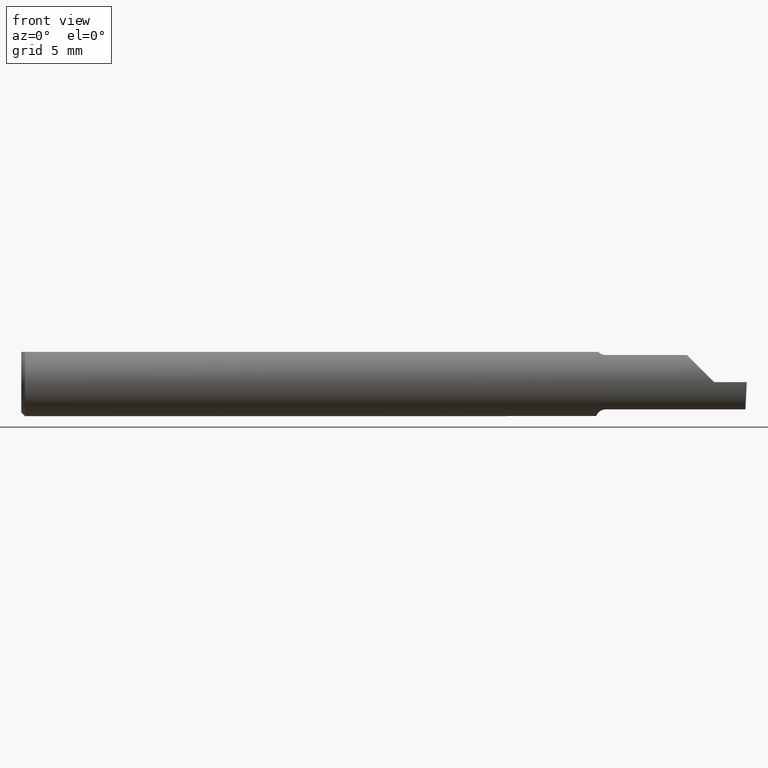
[diagram: clean part render]
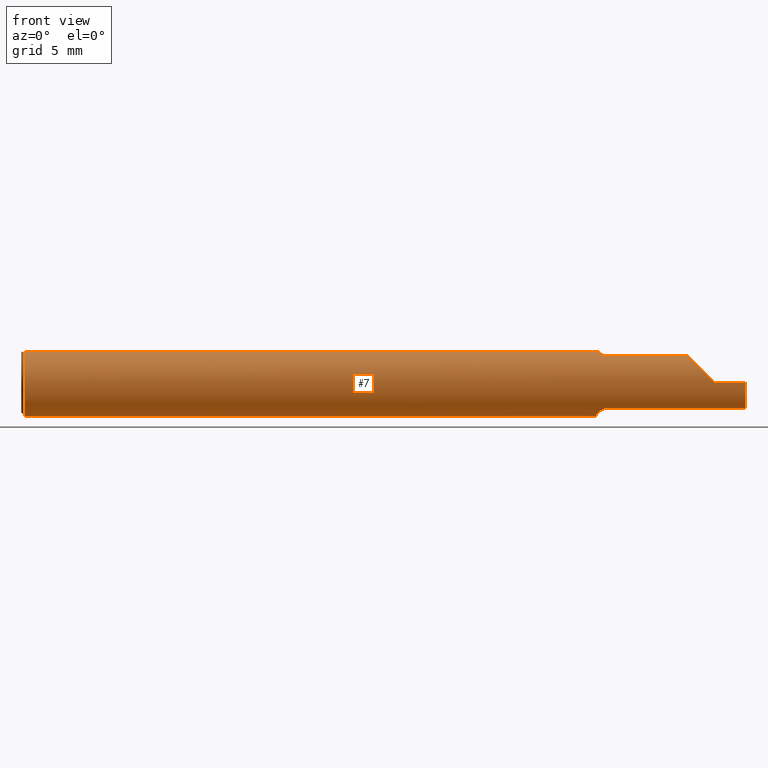
[diagram: same view with one face highlighted and labeled with its STEP entity id]
A machine part, front view. The second image highlights one B-rep face of the part: STEP entity #7.
In plain terms, the highlighted cylindrical surface (edge-blend (fillet) strip) has radius 2.3774 mm, axis along (-1, -0, -0).
Its self-contained STEP definition (entity closure, byte-faithful):
#6 = DIRECTION ( 'NONE',  ( -1.000000000000000000, -0.000000000000000000, -0.000000000000000000 ) ) ;
#7 = ADVANCED_FACE ( 'NONE', ( #692 ), #497, .T. ) ;
#15 = EDGE_CURVE ( 'NONE', #108, #443, #516, .T. ) ;
#19 = ORIENTED_EDGE ( 'NONE', *, *, #743, .F. ) ;
#22 = EDGE_CURVE ( 'NONE', #443, #633, #177, .T. ) ;
#27 = CARTESIAN_POINT ( 'NONE',  ( 1.591204482410374377, -0.04226411763296350488, 0.08351490979309540708 ) ) ;
#32 = CARTESIAN_POINT ( 'NONE',  ( 1.854690286057536941, -0.08092595952420821026, 0.05530971394246249340 ) ) ;
#45 = VERTEX_POINT ( 'NONE', #190 ) ;
#49 = LINE ( 'NONE', #183, #557 ) ;
#58 = CARTESIAN_POINT ( 'NONE',  ( 1.584999999999999964, -0.01308640439514272696, -0.09289765197734378699 ) ) ;
#62 = ORIENTED_EDGE ( 'NONE', *, *, #15, .T. ) ;
#63 = AXIS2_PLACEMENT_3D ( 'NONE', #696, #779, #150 ) ;
#66 = LINE ( 'NONE', #372, #771 ) ;
#80 = CARTESIAN_POINT ( 'NONE',  ( 1.593098441794898346, -0.04641417426599075274, 0.08139430652501543351 ) ) ;
#88 = EDGE_CURVE ( 'NONE', #756, #45, #494, .T. ) ;
#100 = VERTEX_POINT ( 'NONE', #252 ) ;
#108 = VERTEX_POINT ( 'NONE', #263 ) ;
#113 = EDGE_CURVE ( 'NONE', #399, #756, #452, .T. ) ;
#115 = CARTESIAN_POINT ( 'NONE',  ( 1.995069675717878299, -0.05810704225352107677, -0.07337936794867833123 ) ) ;
#119 = DIRECTION ( 'NONE',  ( 1.000000000000000000, 0.000000000000000000, 0.000000000000000000 ) ) ;
#128 = CARTESIAN_POINT ( 'NONE',  ( 1.585436655799339345, -0.01945041057485642419, -0.09177104786119409663 ) ) ;
#130 = DIRECTION ( 'NONE',  ( -1.000000000000000000, -0.000000000000000000, -0.000000000000000000 ) ) ;
#132 = CARTESIAN_POINT ( 'NONE',  ( 0.01000000000000016674, 0.000000000000000000, 0.000000000000000000 ) ) ;
#135 = CARTESIAN_POINT ( 'NONE',  ( 0.000000000000000000, 0.000000000000000000, 0.000000000000000000 ) ) ;
#136 = CARTESIAN_POINT ( 'NONE',  ( 0.01000000000000016674, 0.000000000000000000, -0.09360000000000001652 ) ) ;
#140 = CARTESIAN_POINT ( 'NONE',  ( 1.605389214148234434, -0.05750155061631018888, 0.07386444488392715502 ) ) ;
#142 = DIRECTION ( 'NONE',  ( 1.000000000000000000, 0.000000000000000000, 0.000000000000000000 ) ) ;
#150 = DIRECTION ( 'NONE',  ( 0.000000000000000000, 0.000000000000000000, -1.000000000000000000 ) ) ;
#153 = CARTESIAN_POINT ( 'NONE',  ( 1.591129652885479473, -0.04209513035970116612, 0.08359999999999991049 ) ) ;
#168 = CARTESIAN_POINT ( 'NONE',  ( 1.880893035518782730, -0.09359999999999997489, 0.02910696448121682239 ) ) ;
#172 = CARTESIAN_POINT ( 'NONE',  ( 1.601446782524424073, -0.05558685324519220539, -0.07531605361338929161 ) ) ;
#177 = CIRCLE ( 'NONE', #801, 0.09360000000000001652 ) ;
#178 = CARTESIAN_POINT ( 'NONE',  ( 0.000000000000000000, 0.04209513035969864037, 0.08359999999999988274 ) ) ;
#183 = CARTESIAN_POINT ( 'NONE',  ( 2.999519565323742037E-32, -0.09359999999999998876, 2.449293598294716768E-16 ) ) ;
#184 = VERTEX_POINT ( 'NONE', #638 ) ;
#190 = CARTESIAN_POINT ( 'NONE',  ( 1.836620632051321200, -0.05810704225352102820, 0.07337936794867834511 ) ) ;
#197 = CARTESIAN_POINT ( 'NONE',  ( 1.997012998164632958, -0.09360000000000001652, 0.000000000000000000 ) ) ;
#198 = B_SPLINE_CURVE_WITH_KNOTS ( 'NONE', 3,
 ( #476, #673, #610, #128, #58, #234 ),
 .UNSPECIFIED., .F., .F.,
 ( 4, 2, 4 ),
 ( 0.0007041963409106256075, 0.001193146413573847875, 0.001682096486237070251 ),
 .UNSPECIFIED. ) ;
#200 = CARTESIAN_POINT ( 'NONE',  ( 1.995996405735428469, -0.09359999999999997489, -0.02910696448121681199 ) ) ;
#206 = CARTESIAN_POINT ( 'NONE',  ( 1.609999999999999654, -0.05810704225352104207, 0.07337936794867834511 ) ) ;
#234 = CARTESIAN_POINT ( 'NONE',  ( 1.584999999999999964, -0.006757276995305234492, -0.09335576686851605743 ) ) ;
#238 = EDGE_CURVE ( 'NONE', #184, #293, #755, .T. ) ;
#241 = EDGE_LOOP ( 'NONE', ( #532, #356, #405, #777, #780, #564, #297, #19, #62, #350, #326, #300, #262, #467 ) ) ;
#248 = DIRECTION ( 'NONE',  ( 0.000000000000000000, 0.000000000000000000, -1.000000000000000000 ) ) ;
#252 = CARTESIAN_POINT ( 'NONE',  ( 1.591356684838558744, -0.04260000000000006143, -0.08334386600104411180 ) ) ;
#255 = CARTESIAN_POINT ( 'NONE',  ( 1.609999999999999654, -0.05810704225352104207, -0.07337936794867834511 ) ) ;
#258 = B_SPLINE_CURVE_WITH_KNOTS ( 'NONE', 3,
 ( #153, #27, #686, #758 ),
 .UNSPECIFIED., .F., .F.,
 ( 4, 4 ),
 ( 4.741820243497489152E-07, 1.584523690453282392E-05 ),
 .UNSPECIFIED. ) ;
#262 = ORIENTED_EDGE ( 'NONE', *, *, #761, .F. ) ;
#263 = CARTESIAN_POINT ( 'NONE',  ( 0.01000000000000016674, -0.04209513035969864037, 0.08359999999999988274 ) ) ;
#281 = CARTESIAN_POINT ( 'NONE',  ( 1.910000000000000142, -0.09360000000000005815, 1.102182119232621301E-17 ) ) ;
#282 = VECTOR ( 'NONE', #621, 39.37007874015748143 ) ;
#291 = EDGE_CURVE ( 'NONE', #569, #45, #334, .T. ) ;
#292 = CARTESIAN_POINT ( 'NONE',  ( 0.000000000000000000, -0.04209513035969864037, 0.08359999999999988274 ) ) ;
#293 = VERTEX_POINT ( 'NONE', #406 ) ;
#296 = CARTESIAN_POINT ( 'NONE',  ( 1.609999999999999654, -0.05810704225352104207, -0.07337936794867834511 ) ) ;
#297 = ORIENTED_EDGE ( 'NONE', *, *, #631, .F. ) ;
#299 = CARTESIAN_POINT ( 'NONE',  ( 1.595264545693808822, -0.04993027844100252771, -0.07924826417278524326 ) ) ;
#300 = ORIENTED_EDGE ( 'NONE', *, *, #238, .F. ) ;
#302 =( BOUNDED_CURVE ( )  B_SPLINE_CURVE ( 3, ( #753, #750, #200, #197 ),
 .UNSPECIFIED., .F., .F. ) 
 B_SPLINE_CURVE_WITH_KNOTS ( ( 4, 4 ),
 ( 0.2063001339125776490, 1.107331509589607910 ),
 .UNSPECIFIED. ) 
 CURVE ( )  GEOMETRIC_REPRESENTATION_ITEM ( )  RATIONAL_B_SPLINE_CURVE ( ( 1.000000000000000000, 0.9334817841311873199, 0.9334817841311873199, 1.000000000000000000 ) ) 
 REPRESENTATION_ITEM ( '' )  );
#307 = CARTESIAN_POINT ( 'NONE',  ( 1.591356684838558744, -0.04260000000000006143, -0.08334386600104411180 ) ) ;
#318 = CARTESIAN_POINT ( 'NONE',  ( 1.910000000000000142, -0.09360000000000005815, 1.102182119232621301E-17 ) ) ;
#319 = CARTESIAN_POINT ( 'NONE',  ( 1.591356684838558744, -0.04260000000000006143, 0.08334386600104411180 ) ) ;
#326 = ORIENTED_EDGE ( 'NONE', *, *, #807, .F. ) ;
#334 =( BOUNDED_CURVE ( )  B_SPLINE_CURVE ( 3, ( #281, #168, #32, #396 ),
 .UNSPECIFIED., .F., .F. ) 
 B_SPLINE_CURVE_WITH_KNOTS ( ( 4, 4 ),
 ( 4.712388980384689674, 5.613420356061720184 ),
 .UNSPECIFIED. ) 
 CURVE ( )  GEOMETRIC_REPRESENTATION_ITEM ( )  RATIONAL_B_SPLINE_CURVE ( ( 1.000000000000000000, 0.9334817841311873199, 0.9334817841311873199, 1.000000000000000000 ) ) 
 REPRESENTATION_ITEM ( '' )  );
#349 = LINE ( 'NONE', #178, #593 ) ;
#350 = ORIENTED_EDGE ( 'NONE', *, *, #22, .T. ) ;
#355 = DIRECTION ( 'NONE',  ( -1.000000000000000000, -0.000000000000000000, -0.000000000000000000 ) ) ;
#356 = ORIENTED_EDGE ( 'NONE', *, *, #600, .T. ) ;
#361 = CARTESIAN_POINT ( 'NONE',  ( 1.593086474849918499, -0.04638796853538170589, -0.08140770120152261702 ) ) ;
#371 = CARTESIAN_POINT ( 'NONE',  ( 1.792236604999999816, -0.05810704225352107677, 0.07337936794867833123 ) ) ;
#372 = CARTESIAN_POINT ( 'NONE',  ( 1.792236604999999816, -0.05810704225352107677, -0.07337936794867833123 ) ) ;
#382 = DIRECTION ( 'NONE',  ( 0.000000000000000000, 0.000000000000000000, -1.000000000000000000 ) ) ;
#396 = CARTESIAN_POINT ( 'NONE',  ( 1.836620632051321200, -0.05810704225352102820, 0.07337936794867834511 ) ) ;
#399 = VERTEX_POINT ( 'NONE', #776 ) ;
#405 = ORIENTED_EDGE ( 'NONE', *, *, #689, .T. ) ;
#406 = CARTESIAN_POINT ( 'NONE',  ( 1.584999999999999964, 0.04209513035969864037, 0.08359999999999988274 ) ) ;
#421 = LINE ( 'NONE', #292, #605 ) ;
#426 = EDGE_CURVE ( 'NONE', #805, #453, #66, .T. ) ;
#434 = CARTESIAN_POINT ( 'NONE',  ( 1.599746577633803346, -0.05429945193459796010, 0.07626038032150810053 ) ) ;
#443 = VERTEX_POINT ( 'NONE', #136 ) ;
#446 = CARTESIAN_POINT ( 'NONE',  ( 0.01000000000000016674, 0.04209513035969864037, 0.08359999999999988274 ) ) ;
#452 = B_SPLINE_CURVE_WITH_KNOTS ( 'NONE', 3,
 ( #319, #80, #500, #434, #687, #140, #757, #206 ),
 .UNSPECIFIED., .F., .F.,
 ( 4, 2, 2, 4 ),
 ( 1.584523690453282392E-05, 0.0003656721978374717652, 0.0005405856783039410121, 0.0007154991587704103134 ),
 .UNSPECIFIED. ) ;
#453 = VERTEX_POINT ( 'NONE', #255 ) ;
#467 = ORIENTED_EDGE ( 'NONE', *, *, #672, .F. ) ;
#476 = CARTESIAN_POINT ( 'NONE',  ( 1.591356684838558744, -0.04260000000000006143, -0.08334386600104411180 ) ) ;
#488 = CARTESIAN_POINT ( 'NONE',  ( 0.01000000000000016674, 0.000000000000000000, 0.000000000000000000 ) ) ;
#494 = LINE ( 'NONE', #371, #282 ) ;
#496 = CARTESIAN_POINT ( 'NONE',  ( 1.997012998164632958, -0.09360000000000001652, 0.000000000000000000 ) ) ;
#497 = CYLINDRICAL_SURFACE ( 'NONE', #787, 0.09360000000000001652 ) ;
#500 = CARTESIAN_POINT ( 'NONE',  ( 1.595259025420519450, -0.04992838138009409593, 0.07925011723318660384 ) ) ;
#516 = CIRCLE ( 'NONE', #603, 0.09360000000000001652 ) ;
#532 = ORIENTED_EDGE ( 'NONE', *, *, #426, .F. ) ;
#542 = DIRECTION ( 'NONE',  ( -1.000000000000000000, -0.000000000000000000, -0.000000000000000000 ) ) ;
#557 = VECTOR ( 'NONE', #542, 39.37007874015748143 ) ;
#562 = DIRECTION ( 'NONE',  ( 1.000000000000000000, 0.000000000000000000, 0.000000000000000000 ) ) ;
#564 = ORIENTED_EDGE ( 'NONE', *, *, #113, .F. ) ;
#569 = VERTEX_POINT ( 'NONE', #318 ) ;
#575 = CARTESIAN_POINT ( 'NONE',  ( 1.591129652885479473, -0.04209513035970116612, 0.08359999999999991049 ) ) ;
#585 = VERTEX_POINT ( 'NONE', #496 ) ;
#593 = VECTOR ( 'NONE', #355, 39.37007874015748143 ) ;
#600 = EDGE_CURVE ( 'NONE', #805, #585, #302, .T. ) ;
#603 = AXIS2_PLACEMENT_3D ( 'NONE', #488, #562, #248 ) ;
#605 = VECTOR ( 'NONE', #119, 39.37007874015748143 ) ;
#610 = CARTESIAN_POINT ( 'NONE',  ( 1.587415450430338160, -0.03151229630690477457, -0.08835846806355295013 ) ) ;
#611 = VERTEX_POINT ( 'NONE', #575 ) ;
#618 = DIRECTION ( 'NONE',  ( 0.000000000000000000, 0.000000000000000000, 1.000000000000000000 ) ) ;
#621 = DIRECTION ( 'NONE',  ( 1.000000000000000000, 0.000000000000000000, 0.000000000000000000 ) ) ;
#631 = EDGE_CURVE ( 'NONE', #611, #399, #258, .T. ) ;
#633 = VERTEX_POINT ( 'NONE', #446 ) ;
#638 = CARTESIAN_POINT ( 'NONE',  ( 1.584999999999999964, -0.006757276995305234492, -0.09335576686851605743 ) ) ;
#665 = B_SPLINE_CURVE_WITH_KNOTS ( 'NONE', 3,
 ( #296, #737, #804, #172, #728, #299, #361, #307 ),
 .UNSPECIFIED., .F., .F.,
 ( 4, 2, 2, 4 ),
 ( 1.968126669309073504E-07, 0.0001761966947278512205, 0.0003521965767887715710, 0.0007041963409106256075 ),
 .UNSPECIFIED. ) ;
#672 = EDGE_CURVE ( 'NONE', #453, #100, #665, .T. ) ;
#673 = CARTESIAN_POINT ( 'NONE',  ( 1.588953896433695334, -0.03733827064844358334, -0.08603332211978831356 ) ) ;
#686 = CARTESIAN_POINT ( 'NONE',  ( 1.591280153739604852, -0.04243240890922557462, 0.08342952773968849434 ) ) ;
#687 = CARTESIAN_POINT ( 'NONE',  ( 1.601469028275930739, -0.05559939362423882425, 0.07530665289274077190 ) ) ;
#689 = EDGE_CURVE ( 'NONE', #585, #569, #49, .T. ) ;
#692 = FACE_OUTER_BOUND ( 'NONE', #241, .T. ) ;
#696 = CARTESIAN_POINT ( 'NONE',  ( 1.584999999999999964, 0.000000000000000000, 0.000000000000000000 ) ) ;
#728 = CARTESIAN_POINT ( 'NONE',  ( 1.599728336617688651, -0.05428341532129030145, -0.07627162539867106406 ) ) ;
#737 = CARTESIAN_POINT ( 'NONE',  ( 1.607653034764491506, -0.05810704225352103514, -0.07337936794867835899 ) ) ;
#743 = EDGE_CURVE ( 'NONE', #108, #611, #421, .T. ) ;
#750 = CARTESIAN_POINT ( 'NONE',  ( 1.995302472377616931, -0.08092595952420823802, -0.05530971394246245870 ) ) ;
#753 = CARTESIAN_POINT ( 'NONE',  ( 1.995069675717878299, -0.05810704225352107677, -0.07337936794867833123 ) ) ;
#755 = CIRCLE ( 'NONE', #63, 0.09360000000000001652 ) ;
#756 = VERTEX_POINT ( 'NONE', #794 ) ;
#757 = CARTESIAN_POINT ( 'NONE',  ( 1.607655343791669855, -0.05810704225352097962, 0.07337936794867835899 ) ) ;
#758 = CARTESIAN_POINT ( 'NONE',  ( 1.591356684838558744, -0.04260000000000006143, 0.08334386600104411180 ) ) ;
#761 = EDGE_CURVE ( 'NONE', #100, #184, #198, .T. ) ;
#771 = VECTOR ( 'NONE', #130, 39.37007874015748143 ) ;
#776 = CARTESIAN_POINT ( 'NONE',  ( 1.591356684838558744, -0.04260000000000006143, 0.08334386600104411180 ) ) ;
#777 = ORIENTED_EDGE ( 'NONE', *, *, #291, .T. ) ;
#779 = DIRECTION ( 'NONE',  ( 1.000000000000000000, 0.000000000000000000, 0.000000000000000000 ) ) ;
#780 = ORIENTED_EDGE ( 'NONE', *, *, #88, .F. ) ;
#787 = AXIS2_PLACEMENT_3D ( 'NONE', #135, #6, #618 ) ;
#794 = CARTESIAN_POINT ( 'NONE',  ( 1.609999999999999654, -0.05810704225352104207, 0.07337936794867834511 ) ) ;
#801 = AXIS2_PLACEMENT_3D ( 'NONE', #132, #142, #382 ) ;
#804 = CARTESIAN_POINT ( 'NONE',  ( 1.605389671955115727, -0.05750350940205781886, -0.07386306649500083699 ) ) ;
#805 = VERTEX_POINT ( 'NONE', #115 ) ;
#807 = EDGE_CURVE ( 'NONE', #293, #633, #349, .T. ) ;